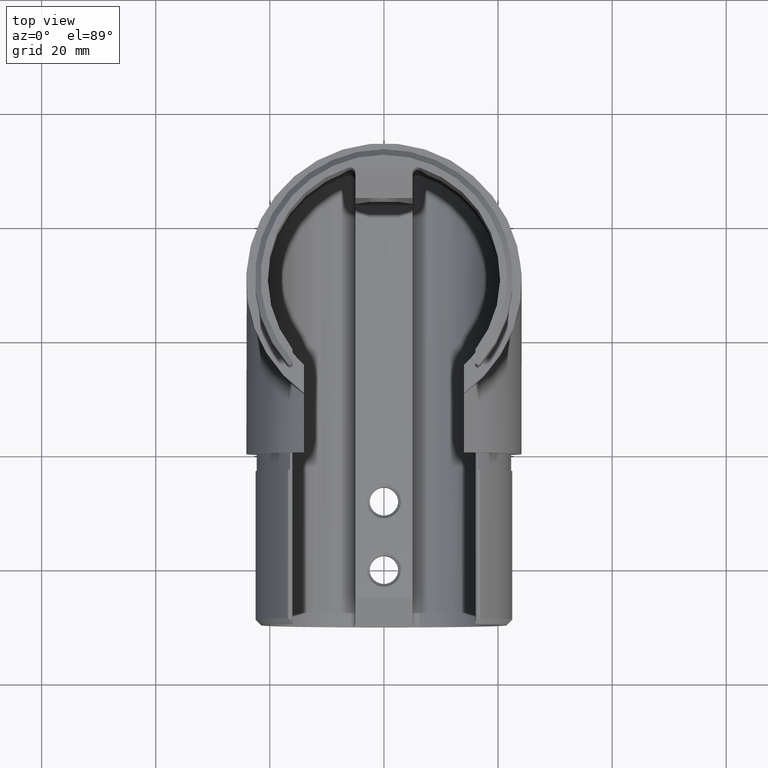
[diagram: clean part render]
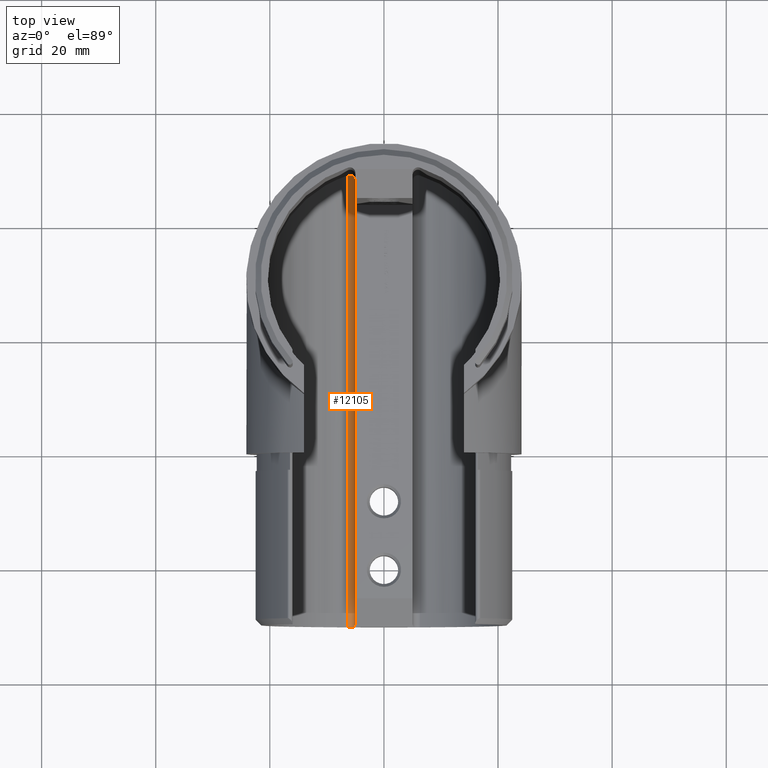
[diagram: same view with one face highlighted and labeled with its STEP entity id]
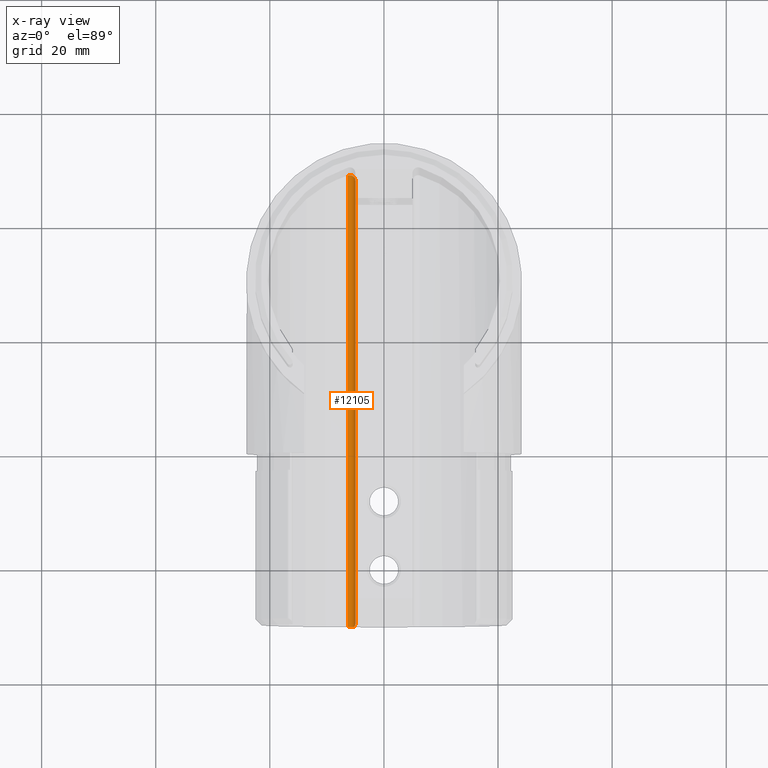
[diagram: x-ray of the same camera — body ghosted, the highlighted face saturated]
A machine part, top view. The second image highlights one B-rep face of the part: STEP entity #12105.
The next image is the same camera in x-ray: the body ghosted, the highlighted face saturated — about 0% of this face is hidden behind the body in this view.
In plain terms, the highlighted cylindrical surface (edge-blend (fillet) strip) has radius 1 mm, axis along (-0, -1, -0).
Its self-contained STEP definition (entity closure, byte-faithful):
#1824 = DIRECTION ( 'NONE',  ( 1.541650777896790400E-016, -1.000000000000000000, 0.0000000000000000000 ) ) ;
#3064 =( BOUNDED_CURVE ( )  B_SPLINE_CURVE ( 3, ( #6733, #17502, #10172, #19568 ),
 .UNSPECIFIED., .F., .F. ) 
 B_SPLINE_CURVE_WITH_KNOTS ( ( 4, 4 ),
 ( 1.570796326794896600, 3.456867223244880700 ),
 .UNSPECIFIED. ) 
 CURVE ( )  GEOMETRIC_REPRESENTATION_ITEM ( )  RATIONAL_B_SPLINE_CURVE ( ( 1.000000000000000000, 0.7248893405717356000, 0.7248893405717356000, 1.000000000000000000 ) ) 
 REPRESENTATION_ITEM ( '' )  );
#3280 = CARTESIAN_POINT ( 'NONE',  ( -6.310077519379857900, -29.99999999999998900, -19.34697448438430500 ) ) ;
#3328 = VECTOR ( 'NONE', #1824, 1000.000000000000000 ) ;
#3333 = VERTEX_POINT ( 'NONE', #9863 ) ;
#4029 = ORIENTED_EDGE ( 'NONE', *, *, #22458, .F. ) ;
#4788 = ORIENTED_EDGE ( 'NONE', *, *, #20778, .T. ) ;
#5075 = CARTESIAN_POINT ( 'NONE',  ( -4.999999999987008600, -29.56331091493371600, -18.66331091493573200 ) ) ;
#5088 = AXIS2_PLACEMENT_3D ( 'NONE', #14255, #13955, #17954 ) ;
#5480 = CARTESIAN_POINT ( 'NONE',  ( -5.289539215088969300, -29.99999999999998900, -19.09999999999999800 ) ) ;
#6546 = VERTEX_POINT ( 'NONE', #13991 ) ;
#6733 = CARTESIAN_POINT ( 'NONE',  ( -5.000000000000000900, 48.24626320751038100, -18.39626320751036900 ) ) ;
#7788 = DIRECTION ( 'NONE',  ( 0.0000000000000000000, 1.000000000000000000, 0.0000000000000000000 ) ) ;
#8074 = VERTEX_POINT ( 'NONE', #3280 ) ;
#8778 = CARTESIAN_POINT ( 'NONE',  ( -4.999999999999988500, -29.29626320747047400, -18.39626320744969200 ) ) ;
#9137 = AXIS2_PLACEMENT_3D ( 'NONE', #13109, #12853, #22156 ) ;
#9543 = VERTEX_POINT ( 'NONE', #14888 ) ;
#9669 = ORIENTED_EDGE ( 'NONE', *, *, #19681, .F. ) ;
#9863 = CARTESIAN_POINT ( 'NONE',  ( -5.289539215088969300, -29.99999999999998900, -19.09999999999999800 ) ) ;
#10172 = CARTESIAN_POINT ( 'NONE',  ( -5.602426442242234300, 49.42777714332277800, -19.57777714332277700 ) ) ;
#10675 = CARTESIAN_POINT ( 'NONE',  ( -5.101607917989484900, -29.81027307613841500, -18.91027307613930800 ) ) ;
#10987 = EDGE_LOOP ( 'NONE', ( #4788, #15194, #9669, #17709, #4029 ) ) ;
#11850 = EDGE_CURVE ( 'NONE', #8074, #9543, #20687, .T. ) ;
#12105 = ADVANCED_FACE ( 'NONE', ( #18098 ), #18675, .F. ) ;
#12295 =( BOUNDED_CURVE ( )  B_SPLINE_CURVE ( 3, ( #8778, #5075, #10675, #5480 ),
 .UNSPECIFIED., .F., .F. ) 
 B_SPLINE_CURVE_WITH_KNOTS ( ( 4, 4 ),
 ( 4.712388980336016600, 5.493032545230432700 ),
 .UNSPECIFIED. ) 
 CURVE ( )  GEOMETRIC_REPRESENTATION_ITEM ( )  RATIONAL_B_SPLINE_CURVE ( ( 1.000000000000000000, 0.9498577826776269900, 0.9498577826776269900, 1.000000000000000000 ) ) 
 REPRESENTATION_ITEM ( '' )  );
#12641 = VECTOR ( 'NONE', #7788, 1000.000000000000000 ) ;
#12853 = DIRECTION ( 'NONE',  ( -0.0000000000000000000, 1.000000000000000000, 2.220446049250313100E-016 ) ) ;
#13109 = CARTESIAN_POINT ( 'NONE',  ( -6.000000000000008000, -30.00000000000000000, -18.39626320751036900 ) ) ;
#13955 = DIRECTION ( 'NONE',  ( -0.0000000000000000000, -1.000000000000000000, -0.0000000000000000000 ) ) ;
#13991 = CARTESIAN_POINT ( 'NONE',  ( -5.000000000000000900, 48.24626320751038100, -18.39626320751036900 ) ) ;
#14255 = CARTESIAN_POINT ( 'NONE',  ( -6.000000000000008000, 97.30703118671557700, -18.39626320751036900 ) ) ;
#14888 = CARTESIAN_POINT ( 'NONE',  ( -6.310077519379846400, 49.19697448438430600, -19.34697448438430500 ) ) ;
#15194 = ORIENTED_EDGE ( 'NONE', *, *, #11850, .F. ) ;
#16949 = CARTESIAN_POINT ( 'NONE',  ( -6.310077519379855300, 97.30703118671557700, -19.34697448438429700 ) ) ;
#17502 = CARTESIAN_POINT ( 'NONE',  ( -5.000000000000003600, 48.99060178258700700, -19.14060178258699100 ) ) ;
#17709 = ORIENTED_EDGE ( 'NONE', *, *, #21365, .F. ) ;
#17954 = DIRECTION ( 'NONE',  ( 0.0000000000000000000, 0.0000000000000000000, -1.000000000000000000 ) ) ;
#18098 = FACE_OUTER_BOUND ( 'NONE', #10987, .T. ) ;
#18186 = CARTESIAN_POINT ( 'NONE',  ( -5.000000000000000900, 49.57618817714157400, -18.39626320753495700 ) ) ;
#18675 = CYLINDRICAL_SURFACE ( 'NONE', #5088, 1.000000000000000900 ) ;
#19568 = CARTESIAN_POINT ( 'NONE',  ( -6.310077519379846400, 49.19697448438430600, -19.34697448438430500 ) ) ;
#19681 = EDGE_CURVE ( 'NONE', #3333, #8074, #19729, .T. ) ;
#19729 = CIRCLE ( 'NONE', #9137, 1.000000000000000900 ) ;
#20687 = LINE ( 'NONE', #16949, #12641 ) ;
#20778 = EDGE_CURVE ( 'NONE', #6546, #9543, #3064, .T. ) ;
#21365 = EDGE_CURVE ( 'NONE', #23354, #3333, #12295, .T. ) ;
#22146 = CARTESIAN_POINT ( 'NONE',  ( -4.999999999999988500, -29.29626320747047400, -18.39626320744969200 ) ) ;
#22156 = DIRECTION ( 'NONE',  ( -3.469446951953611000E-015, 0.0000000000000000000, -1.000000000000000000 ) ) ;
#22276 = LINE ( 'NONE', #18186, #3328 ) ;
#22458 = EDGE_CURVE ( 'NONE', #6546, #23354, #22276, .T. ) ;
#23354 = VERTEX_POINT ( 'NONE', #22146 ) ;